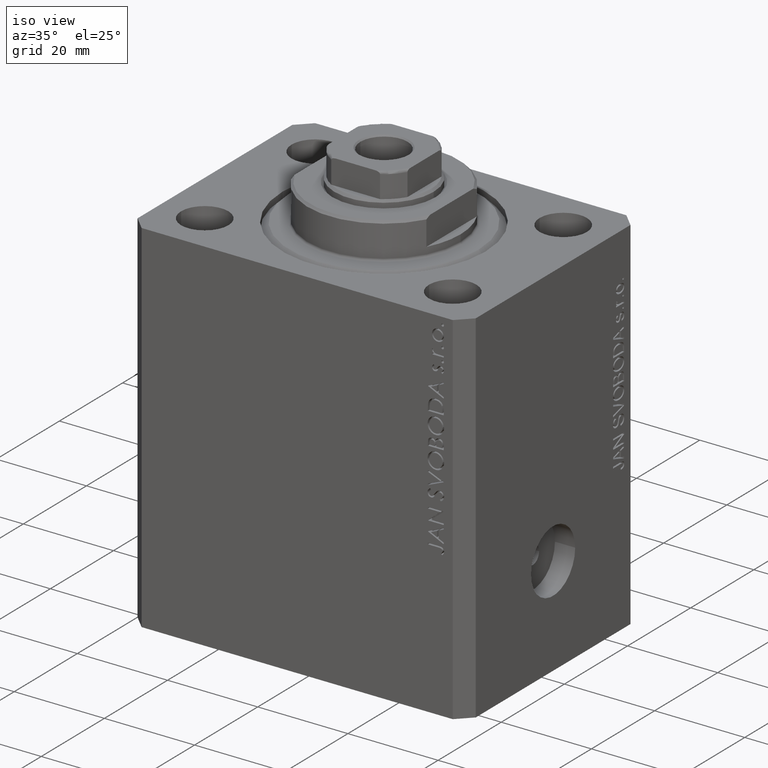
[diagram: clean part render]
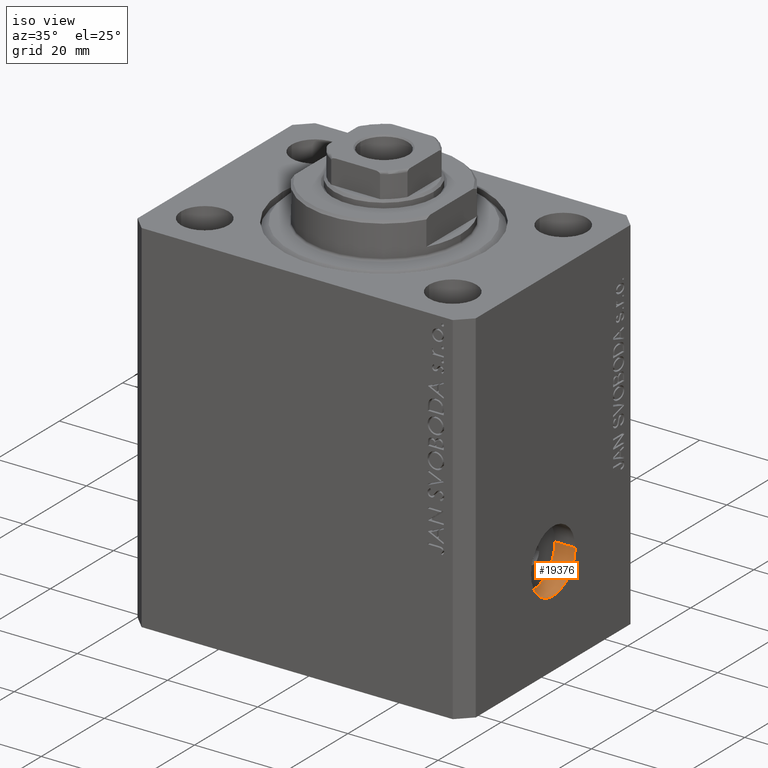
[diagram: same view with one face highlighted and labeled with its STEP entity id]
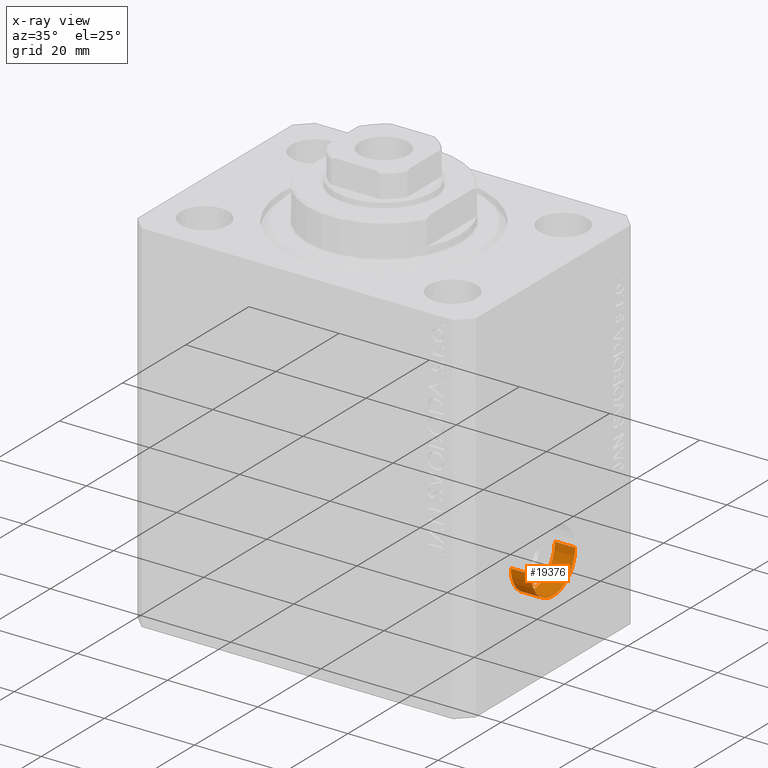
[diagram: x-ray of the same camera — body ghosted, the highlighted face saturated]
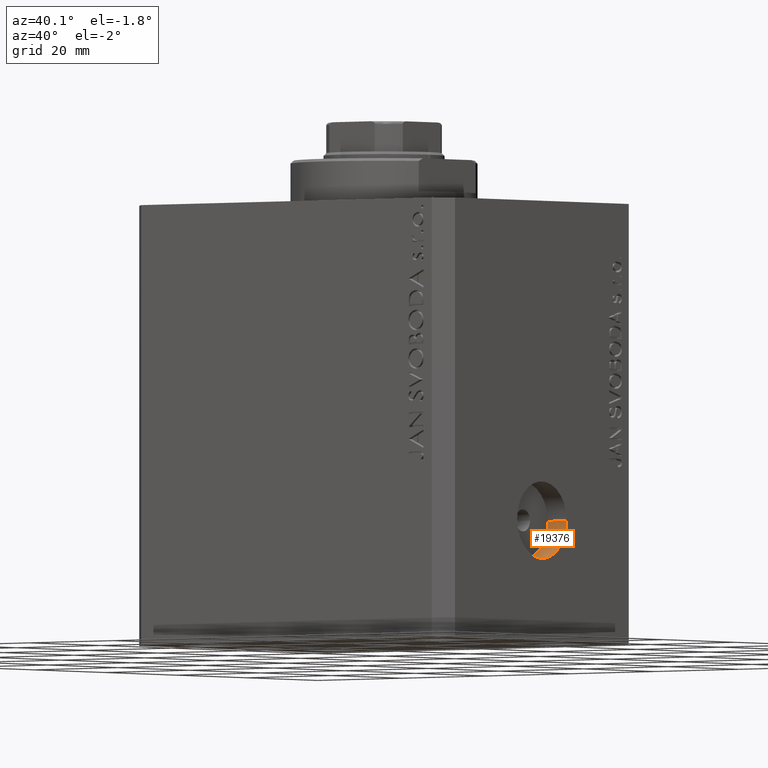
[diagram: same view with one face highlighted and labeled with its STEP entity id]
A machine part, iso view. The second image highlights one B-rep face of the part: STEP entity #19376.
The next image is the same camera in x-ray: the body ghosted, the highlighted face saturated — about 0% of this face is hidden behind the body in this view.
A second angle (auxiliary view) of the same face is appended — the face is thin or edge-on in the first view.
In plain terms, the highlighted cylindrical surface (partial cylindrical patch) has radius 7 mm, axis along (1, -0, 0).
Its self-contained STEP definition (entity closure, byte-faithful):
#758 = EDGE_CURVE ( 'NONE', #35068, #11772, #7520, .T. ) ;
#1013 = EDGE_CURVE ( 'NONE', #20202, #13741, #24932, .T. ) ;
#1294 = ORIENTED_EDGE ( 'NONE', *, *, #9851, .F. ) ;
#2196 = CARTESIAN_POINT ( 'NONE',  ( 33.00000000000017053, -6.999999999999920064, -58.00000000000000000 ) ) ;
#2647 = CARTESIAN_POINT ( 'NONE',  ( 33.00000000000025580, 7.279302749271440798E-14, -58.00000000000000000 ) ) ;
#7014 = VECTOR ( 'NONE', #34617, 1000.000000000000000 ) ;
#7520 = CIRCLE ( 'NONE', #8265, 6.999999999999992895 ) ;
#8265 = AXIS2_PLACEMENT_3D ( 'NONE', #37987, #41366, #38425 ) ;
#9217 = DIRECTION ( 'NONE',  ( 1.288651725011343653E-14, 1.000000000000000000, 0.000000000000000000 ) ) ;
#9752 = CYLINDRICAL_SURFACE ( 'NONE', #12170, 6.999999999999992895 ) ;
#9851 = EDGE_CURVE ( 'NONE', #13741, #11772, #31019, .T. ) ;
#10120 = DIRECTION ( 'NONE',  ( 1.000000000000000000, -1.334402673828348976E-14, -0.000000000000000000 ) ) ;
#11772 = VERTEX_POINT ( 'NONE', #32534 ) ;
#12170 = AXIS2_PLACEMENT_3D ( 'NONE', #37588, #17438, #31235 ) ;
#12173 = EDGE_CURVE ( 'NONE', #20202, #35068, #44706, .T. ) ;
#12529 = EDGE_LOOP ( 'NONE', ( #41431, #15710, #17607, #1294 ) ) ;
#13585 = FACE_OUTER_BOUND ( 'NONE', #12529, .T. ) ;
#13741 = VERTEX_POINT ( 'NONE', #25401 ) ;
#15710 = ORIENTED_EDGE ( 'NONE', *, *, #12173, .T. ) ;
#16471 = DIRECTION ( 'NONE',  ( 1.000000000000000000, -1.334402673828349134E-14, 0.000000000000000000 ) ) ;
#17438 = DIRECTION ( 'NONE',  ( 1.000000000000000000, -1.334402673828348976E-14, -0.000000000000000000 ) ) ;
#17607 = ORIENTED_EDGE ( 'NONE', *, *, #758, .T. ) ;
#18447 = AXIS2_PLACEMENT_3D ( 'NONE', #2647, #16471, #9217 ) ;
#19376 = ADVANCED_FACE ( 'NONE', ( #13585 ), #9752, .F. ) ;
#20202 = VERTEX_POINT ( 'NONE', #2196 ) ;
#24932 = CIRCLE ( 'NONE', #18447, 6.999999999999992895 ) ;
#25401 = CARTESIAN_POINT ( 'NONE',  ( 33.00000000000034817, 7.000000000000065725, -58.00000000000000000 ) ) ;
#30059 = CARTESIAN_POINT ( 'NONE',  ( 37.50000000000016342, -6.999999999999980460, -58.00000000000000000 ) ) ;
#31019 = LINE ( 'NONE', #38238, #7014 ) ;
#31235 = DIRECTION ( 'NONE',  ( 1.288651725011343653E-14, 1.000000000000000000, 0.000000000000000000 ) ) ;
#32534 = CARTESIAN_POINT ( 'NONE',  ( 37.50000000000034817, 7.000000000000006217, -58.00000000000000000 ) ) ;
#34617 = DIRECTION ( 'NONE',  ( 1.000000000000000000, -1.334402673828348976E-14, -0.000000000000000000 ) ) ;
#34757 = CARTESIAN_POINT ( 'NONE',  ( 33.00000000000017053, -6.999999999999920064, -58.00000000000000000 ) ) ;
#35068 = VERTEX_POINT ( 'NONE', #30059 ) ;
#37588 = CARTESIAN_POINT ( 'NONE',  ( 33.00000000000025580, 7.279302749271440798E-14, -58.00000000000000000 ) ) ;
#37987 = CARTESIAN_POINT ( 'NONE',  ( 37.50000000000025580, 1.274490717043870406E-14, -58.00000000000000000 ) ) ;
#38115 = VECTOR ( 'NONE', #10120, 1000.000000000000000 ) ;
#38238 = CARTESIAN_POINT ( 'NONE',  ( 33.00000000000034817, 7.000000000000065725, -58.00000000000000000 ) ) ;
#38425 = DIRECTION ( 'NONE',  ( 1.288651725011343653E-14, 1.000000000000000000, 0.000000000000000000 ) ) ;
#41366 = DIRECTION ( 'NONE',  ( 1.000000000000000000, -1.334402673828349134E-14, 0.000000000000000000 ) ) ;
#41431 = ORIENTED_EDGE ( 'NONE', *, *, #1013, .F. ) ;
#44706 = LINE ( 'NONE', #34757, #38115 ) ;